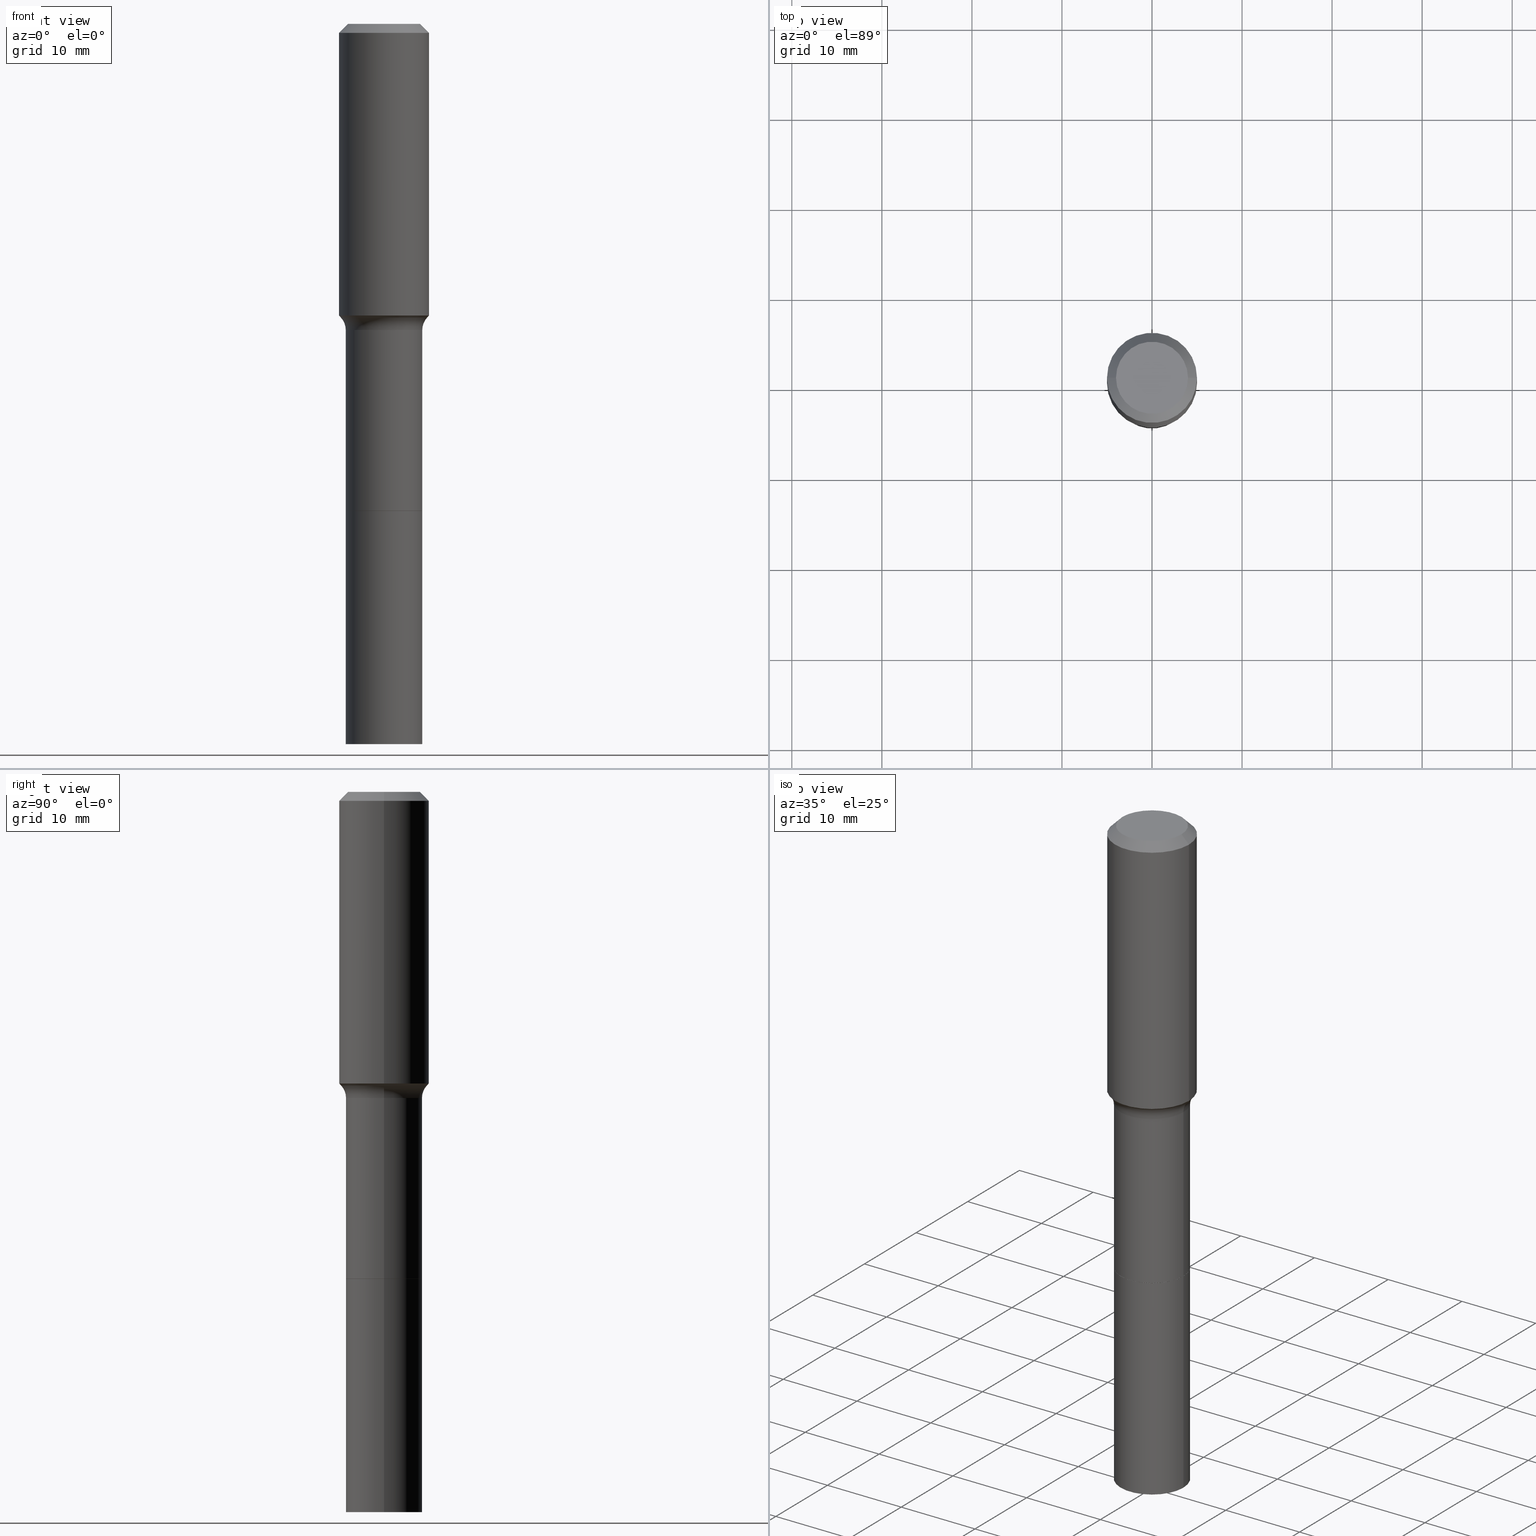
[diagram: canonical four-view strip — front | top / right | iso, engineering-drawing reading convention]
A machine part, canonical four-view strip (front | top / right | iso — engineering-drawing reading convention). The complete STEP part file that produces these views, byte-faithful:
ISO-10303-21;
HEADER;
FILE_DESCRIPTION (( 'STEP AP203' ),
    '1' );
FILE_NAME ('67762.STEP',
    '2025-04-01T15:30:18',
    ( '' ),
    ( '' ),
    'SwSTEP 2.0',
    'SolidWorks 2024',
    '' );
FILE_SCHEMA (( 'CONFIG_CONTROL_DESIGN' ));
ENDSEC;

DATA;
#1 =( CONVERSION_BASED_UNIT ( 'INCH', #131 ) LENGTH_UNIT ( ) NAMED_UNIT ( #398 ) );
#2 = VECTOR ( 'NONE', #107, 39.37007874015748143 ) ;
#3 = DIRECTION ( 'NONE',  ( 1.000000000000000000, -6.982962677686269077E-15, 0.000000000000000000 ) ) ;
#4 = ORIENTED_EDGE ( 'NONE', *, *, #29, .F. ) ;
#5 = DIRECTION ( 'NONE',  ( 1.000000000000000000, -6.982962677686269077E-15, 0.000000000000000000 ) ) ;
#6 = CARTESIAN_POINT ( 'NONE',  ( 5.207870369651868145E-29, -7.435458659200363034E-15, -2.129599999999999937 ) ) ;
#7 = ADVANCED_FACE ( 'NONE', ( #344 ), #459, .T. ) ;
#8 = ORIENTED_EDGE ( 'NONE', *, *, #250, .F. ) ;
#9 = FACE_OUTER_BOUND ( 'NONE', #102, .T. ) ;
#10 = CIRCLE ( 'NONE', #20, 0.1574800000000000089 ) ;
#11 = ORIENTED_EDGE ( 'NONE', *, *, #440, .T. ) ;
#12 = APPROVAL_ROLE ( '' ) ;
#13 = DIRECTION ( 'NONE',  ( 1.000000000000000000, -6.982962677686265922E-15, 4.876223630392693006E-29 ) ) ;
#14 = EDGE_CURVE ( 'NONE', #294, #92, #341, .T. ) ;
#15 = PLANE ( 'NONE',  #309 ) ;
#16 = ORIENTED_EDGE ( 'NONE', *, *, #184, .F. ) ;
#17 = PERSON_AND_ORGANIZATION_ROLE ( 'creator' ) ;
#18 = FACE_OUTER_BOUND ( 'NONE', #417, .T. ) ;
#19 = LOCAL_TIME ( 11, 30, 18.00000000000000000, #203 ) ;
#20 = AXIS2_PLACEMENT_3D ( 'NONE', #49, #352, #88 ) ;
#21 = ORIENTED_EDGE ( 'NONE', *, *, #351, .F. ) ;
#22 = CIRCLE ( 'NONE', #412, 0.1673000000000002263 ) ;
#23 = DIRECTION ( 'NONE',  ( 1.000000000000000000, -6.982962677686271444E-15, 0.000000000000000000 ) ) ;
#24 = VERTEX_POINT ( 'NONE', #268 ) ;
#25 = DIRECTION ( 'NONE',  ( -0.6819983600624909270, 7.399397606724258177E-15, 0.7313537016191775653 ) ) ;
#26 = VERTEX_POINT ( 'NONE', #387 ) ;
#27 = DIRECTION ( 'NONE',  ( -2.445468806185136877E-29, 3.491481338843145188E-15, 1.000000000000000000 ) ) ;
#28 = ORIENTED_EDGE ( 'NONE', *, *, #410, .T. ) ;
#29 = EDGE_CURVE ( 'NONE', #458, #298, #22, .T. ) ;
#30 = CIRCLE ( 'NONE', #234, 0.1673000000000000043 ) ;
#31 = DIRECTION ( 'NONE',  ( 1.000000000000000000, -6.982962677686267499E-15, 0.000000000000000000 ) ) ;
#32 = ORIENTED_EDGE ( 'NONE', *, *, #53, .T. ) ;
#33 = DIRECTION ( 'NONE',  ( 0.7071067811865452413, -7.319954787623248157E-15, -0.7071067811865497932 ) ) ;
#34 = CARTESIAN_POINT ( 'NONE',  ( 0.2472999999999999088, -6.400583590367248387E-15, -1.338600000000000234 ) ) ;
#35 = FACE_OUTER_BOUND ( 'NONE', #214, .T. ) ;
#36 = DIRECTION ( 'NONE',  ( 1.000000000000000000, -6.982962677686268288E-15, 0.000000000000000000 ) ) ;
#37 = APPROVAL_PERSON_ORGANIZATION ( #100, #384, #12 ) ;
#38 = CARTESIAN_POINT ( 'NONE',  ( -0.1672999999999999488, 1.188737996926647247E-15, -8.229378405996454748E-30 ) ) ;
#39 = COORDINATED_UNIVERSAL_TIME_OFFSET ( 5, 0, .BEHIND. ) ;
#40 = DATE_AND_TIME ( #121, #113 ) ;
#41 = APPLICATION_PROTOCOL_DEFINITION ( 'international standard', 'config_control_design', 1994, #191 ) ;
#42 = ORGANIZATION ( 'UNSPECIFIED', 'UNSPECIFIED', '' ) ;
#43 = CARTESIAN_POINT ( 'NONE',  ( 0.1968500000000001915, -5.827626847015647066E-15, -1.275398666569575568 ) ) ;
#44 = AXIS2_PLACEMENT_3D ( 'NONE', #213, #372, #183 ) ;
#45 = ADVANCED_BREP_SHAPE_REPRESENTATION ( '67762', ( #244, #256, #265 ), #512 ) ;
#46 = APPROVAL_STATUS ( 'not_yet_approved' ) ;
#47 = EDGE_CURVE ( 'NONE', #56, #26, #396, .T. ) ;
#48 = DIRECTION ( 'NONE',  ( -2.445468806185136597E-29, 3.491481338843145583E-15, 1.000000000000000000 ) ) ;
#49 = CARTESIAN_POINT ( 'NONE',  ( -9.427742298522567634E-47, 1.346031739168368355E-32, 3.855188123715870730E-18 ) ) ;
#50 = EDGE_LOOP ( 'NONE', ( #110, #129, #349, #95 ) ) ;
#51 = CARTESIAN_POINT ( 'NONE',  ( -0.1673000000000000043, -8.027376145083720030E-15, -2.129599999999999937 ) ) ;
#52 = CONICAL_SURFACE ( 'NONE', #346, 0.1887917038704666206, 0.7504915783575513144 ) ;
#53 = EDGE_CURVE ( 'NONE', #327, #24, #194, .T. ) ;
#54 = ORIENTED_EDGE ( 'NONE', *, *, #125, .F. ) ;
#55 = CARTESIAN_POINT ( 'NONE',  ( -0.1574800000000000089, 1.168406772637159815E-15, 3.855188123707939751E-18 ) ) ;
#56 = VERTEX_POINT ( 'NONE', #43 ) ;
#57 = CC_DESIGN_PERSON_AND_ORGANIZATION_ASSIGNMENT ( #368, #332, ( #360 ) ) ;
#58 = DATE_AND_TIME ( #215, #120 ) ;
#59 = CARTESIAN_POINT ( 'NONE',  ( 5.207870369651867024E-29, -7.435458659200361456E-15, -2.129599999999999937 ) ) ;
#60 = DESIGN_CONTEXT ( 'detailed design', #191, 'design' ) ;
#61 = ORIENTED_EDGE ( 'NONE', *, *, #258, .T. ) ;
#62 = CYLINDRICAL_SURFACE ( 'NONE', #443, 0.1673000000000001153 ) ;
#63 = CC_DESIGN_APPROVAL ( #69, ( #287 ) ) ;
#64 = CIRCLE ( 'NONE', #114, 0.1668000000000000038 ) ;
#65 = EDGE_LOOP ( 'NONE', ( #211, #261, #126, #54 ) ) ;
#66 = AXIS2_PLACEMENT_3D ( 'NONE', #386, #111, #31 ) ;
#67 = EDGE_CURVE ( 'NONE', #56, #154, #83, .T. ) ;
#68 = VERTEX_POINT ( 'NONE', #160 ) ;
#69 = APPROVAL ( #46, 'UNSPECIFIED' ) ;
#70 = ORIENTED_EDGE ( 'NONE', *, *, #152, .T. ) ;
#71 = DIRECTION ( 'NONE',  ( 2.445468806185136597E-29, -3.491481338843145583E-15, -1.000000000000000000 ) ) ;
#72 = ORIENTED_EDGE ( 'NONE', *, *, #47, .F. ) ;
#73 = EDGE_CURVE ( 'NONE', #327, #56, #406, .T. ) ;
#74 = CIRCLE ( 'NONE', #185, 0.1887917038704666206 ) ;
#75 = LINE ( 'NONE', #271, #444 ) ;
#76 = CARTESIAN_POINT ( 'NONE',  ( 0.1968500000000000527, -1.512055823412797583E-15, -0.03937000000000030059 ) ) ;
#77 = DIRECTION ( 'NONE',  ( 1.000000000000000000, -6.982962677686267499E-15, 0.000000000000000000 ) ) ;
#78 = APPROVAL_STATUS ( 'not_yet_approved' ) ;
#79 = AXIS2_PLACEMENT_3D ( 'NONE', #217, #493, #293 ) ;
#80 = EDGE_CURVE ( 'NONE', #195, #135, #150, .T. ) ;
#81 = DIRECTION ( 'NONE',  ( -2.445468806185136597E-29, 3.491481338843145583E-15, 1.000000000000000000 ) ) ;
#82 = DIRECTION ( 'NONE',  ( -2.445468806185136597E-29, 3.491481338843145583E-15, 1.000000000000000000 ) ) ;
#83 = LINE ( 'NONE', #315, #141 ) ;
#84 = EDGE_CURVE ( 'NONE', #174, #294, #10, .T. ) ;
#85 = VECTOR ( 'NONE', #516, 39.37007874015748143 ) ;
#86 = PERSON_AND_ORGANIZATION_ROLE ( 'creator' ) ;
#87 = AXIS2_PLACEMENT_3D ( 'NONE', #226, #495, #340 ) ;
#88 = DIRECTION ( 'NONE',  ( 1.000000000000000000, -6.982962677686265922E-15, 4.876223630392693006E-29 ) ) ;
#89 = VECTOR ( 'NONE', #27, 39.37007874015748143 ) ;
#90 = PRODUCT_DEFINITION ( 'UNKNOWN', '', #287, #60 ) ;
#91 = DIRECTION ( 'NONE',  ( -2.445468806185136597E-29, 3.491481338843145583E-15, 1.000000000000000000 ) ) ;
#92 = VERTEX_POINT ( 'NONE', #283 ) ;
#93 = CARTESIAN_POINT ( 'NONE',  ( -4.713871149261283817E-47, 6.730158695841841775E-33, 1.927594061857935365E-18 ) ) ;
#94 = ADVANCED_FACE ( 'NONE', ( #364 ), #241, .F. ) ;
#95 = ORIENTED_EDGE ( 'NONE', *, *, #363, .F. ) ;
#96 = CYLINDRICAL_SURFACE ( 'NONE', #267, 0.1968500000000001082 ) ;
#97 = ADVANCED_FACE ( 'NONE', ( #163 ), #432, .T. ) ;
#98 = AXIS2_PLACEMENT_3D ( 'NONE', #474, #232, #504 ) ;
#99 = EDGE_LOOP ( 'NONE', ( #365, #11, #429, #491 ) ) ;
#100 = PERSON_AND_ORGANIZATION ( #116, #42 ) ;
#101 = FACE_OUTER_BOUND ( 'NONE', #99, .T. ) ;
#102 = EDGE_LOOP ( 'NONE', ( #427, #382, #463, #367 ) ) ;
#103 = CARTESIAN_POINT ( 'NONE',  ( 7.702248551960706711E-29, -1.099676962482037231E-14, -3.149600000000000399 ) ) ;
#104 = ORIENTED_EDGE ( 'NONE', *, *, #184, .T. ) ;
#105 = CARTESIAN_POINT ( 'NONE',  ( 5.207870369651867024E-29, -7.435458659200361456E-15, -2.129599999999999937 ) ) ;
#106 = AXIS2_PLACEMENT_3D ( 'NONE', #186, #503, #233 ) ;
#107 = DIRECTION ( 'NONE',  ( -0.7071067811865452413, 2.468850131082233000E-15, -0.7071067811865497932 ) ) ;
#108 = ORIENTED_EDGE ( 'NONE', *, *, #437, .T. ) ;
#109 = DIRECTION ( 'NONE',  ( -2.445468806185136597E-29, 3.491481338843145583E-15, 1.000000000000000000 ) ) ;
#110 = ORIENTED_EDGE ( 'NONE', *, *, #496, .T. ) ;
#111 = DIRECTION ( 'NONE',  ( -2.445468806185136597E-29, 3.491481338843145583E-15, 1.000000000000000000 ) ) ;
#112 = DIRECTION ( 'NONE',  ( -2.445468806185136597E-29, 3.491481338843145583E-15, 1.000000000000000000 ) ) ;
#113 = LOCAL_TIME ( 11, 30, 18.00000000000000000, #39 ) ;
#114 = AXIS2_PLACEMENT_3D ( 'NONE', #291, #91, #251 ) ;
#115 = FACE_OUTER_BOUND ( 'NONE', #411, .T. ) ;
#116 = PERSON ( 'UNSPECIFIED', 'UNSPECIFIED', 'UNSPECIFIED', ('UNSPECIFIED'), ('UNSPECIFIED'), ('UNSPECIFIED') ) ;
#117 = DIRECTION ( 'NONE',  ( -2.445468806185136597E-29, 3.491481338843145583E-15, 1.000000000000000000 ) ) ;
#118 = LINE ( 'NONE', #507, #289 ) ;
#119 =( LENGTH_UNIT ( ) NAMED_UNIT ( * ) SI_UNIT ( $, .METRE. ) );
#120 = LOCAL_TIME ( 11, 30, 18.00000000000000000, #413 ) ;
#121 = CALENDAR_DATE ( 2025, 1, 4 ) ;
#122 = AXIS2_PLACEMENT_3D ( 'NONE', #93, #144, #460 ) ;
#123 =( NAMED_UNIT ( * ) PLANE_ANGLE_UNIT ( ) SI_UNIT ( $, .RADIAN. ) );
#124 = CARTESIAN_POINT ( 'NONE',  ( 5.207870369651868145E-29, -7.435458659200363034E-15, -2.129599999999999937 ) ) ;
#125 = EDGE_CURVE ( 'NONE', #92, #154, #422, .T. ) ;
#126 = ORIENTED_EDGE ( 'NONE', *, *, #67, .T. ) ;
#127 = CALENDAR_DATE ( 2025, 1, 4 ) ;
#128 = CARTESIAN_POINT ( 'NONE',  ( 3.273504543959424474E-29, -4.673696920175435525E-15, -1.338600000000000234 ) ) ;
#129 = ORIENTED_EDGE ( 'NONE', *, *, #478, .T. ) ;
#130 = CC_DESIGN_APPROVAL ( #384, ( #360 ) ) ;
#131 = LENGTH_MEASURE_WITH_UNIT ( LENGTH_MEASURE( 0.02539999999999999897 ), #119 );
#132 = CIRCLE ( 'NONE', #79, 0.1668000000000000038 ) ;
#133 = CYLINDRICAL_SURFACE ( 'NONE', #513, 0.1673000000000001153 ) ;
#134 = CONICAL_SURFACE ( 'NONE', #442, 0.1968500000000000527, 0.7853981633974450594 ) ;
#135 = VERTEX_POINT ( 'NONE', #319 ) ;
#136 = DIRECTION ( 'NONE',  ( 1.000000000000000000, -6.982962677686269866E-15, 0.000000000000000000 ) ) ;
#137 = ORIENTED_EDGE ( 'NONE', *, *, #125, .T. ) ;
#138 = ADVANCED_FACE ( 'NONE', ( #246 ), #431, .T. ) ;
#139 = DIRECTION ( 'NONE',  ( -2.445468806185136877E-29, 3.491481338843145188E-15, 1.000000000000000000 ) ) ;
#140 = FACE_OUTER_BOUND ( 'NONE', #337, .T. ) ;
#141 = VECTOR ( 'NONE', #171, 39.37007874015748143 ) ;
#142 = ORIENTED_EDGE ( 'NONE', *, *, #84, .F. ) ;
#143 = APPROVAL_DATE_TIME ( #446, #384 ) ;
#144 = DIRECTION ( 'NONE',  ( 2.438088387897960049E-29, -3.491481338843145188E-15, -1.000000000000000000 ) ) ;
#145 = EDGE_CURVE ( 'NONE', #327, #195, #430, .T. ) ;
#146 = ORIENTED_EDGE ( 'NONE', *, *, #168, .F. ) ;
#147 = DIRECTION ( 'NONE',  ( -2.445468806185136597E-29, 3.491481338843145583E-15, 1.000000000000000000 ) ) ;
#148 = CARTESIAN_POINT ( 'NONE',  ( -0.1968500000000000527, 1.237136582792286422E-15, -0.03937000000000030059 ) ) ;
#149 = LINE ( 'NONE', #158, #318 ) ;
#150 = CIRCLE ( 'NONE', #175, 0.1672999999999999210 ) ;
#151 = EDGE_LOOP ( 'NONE', ( #494, #4 ) ) ;
#152 = EDGE_CURVE ( 'NONE', #24, #327, #74, .T. ) ;
#153 = LINE ( 'NONE', #276, #89 ) ;
#154 = VERTEX_POINT ( 'NONE', #76 ) ;
#155 = CARTESIAN_POINT ( 'NONE',  ( 5.207870369651868145E-29, -7.435458659200363034E-15, -2.129599999999999937 ) ) ;
#156 = APPROVAL ( #78, 'UNSPECIFIED' ) ;
#157 = DIRECTION ( 'NONE',  ( 1.000000000000000000, -6.982962677686271444E-15, 0.000000000000000000 ) ) ;
#158 = CARTESIAN_POINT ( 'NONE',  ( -0.1887917038704666206, -3.141756418823728173E-15, -1.284040131195000489 ) ) ;
#159 = APPROVAL_PERSON_ORGANIZATION ( #321, #156, #242 ) ;
#160 = CARTESIAN_POINT ( 'NONE',  ( 0.1673000000000000043, -8.603708315177275821E-15, -2.129599999999999937 ) ) ;
#161 = CIRCLE ( 'NONE', #201, 0.07999999999999990452 ) ;
#162 = CIRCLE ( 'NONE', #355, 0.1673000000000000043 ) ;
#163 = FACE_OUTER_BOUND ( 'NONE', #50, .T. ) ;
#164 = EDGE_CURVE ( 'NONE', #26, #56, #255, .T. ) ;
#165 = DIRECTION ( 'NONE',  ( -2.445468806185136597E-29, 3.491481338843145583E-15, 1.000000000000000000 ) ) ;
#166 = CARTESIAN_POINT ( 'NONE',  ( 5.206647635248775343E-29, -7.433712918530942319E-15, -2.129100000000000215 ) ) ;
#167 = AXIS2_PLACEMENT_3D ( 'NONE', #402, #207, #509 ) ;
#168 = EDGE_CURVE ( 'NONE', #68, #288, #30, .T. ) ;
#169 = DIRECTION ( 'NONE',  ( 1.000000000000000000, 0.000000000000000000, 0.000000000000000000 ) ) ;
#170 = CC_DESIGN_PERSON_AND_ORGANIZATION_ASSIGNMENT ( #371, #375, ( #287 ) ) ;
#171 = DIRECTION ( 'NONE',  ( -2.445468806185136877E-29, 3.491481338843145188E-15, 1.000000000000000000 ) ) ;
#172 = DIRECTION ( 'NONE',  ( 2.438088387897960049E-29, -3.491481338843145188E-15, -1.000000000000000000 ) ) ;
#173 = DIRECTION ( 'NONE',  ( -2.445468806185136597E-29, 3.491481338843145583E-15, 1.000000000000000000 ) ) ;
#174 = VERTEX_POINT ( 'NONE', #441 ) ;
#175 = AXIS2_PLACEMENT_3D ( 'NONE', #128, #48, #77 ) ;
#176 = DIRECTION ( 'NONE',  ( 7.105427357601001859E-15, 1.000000000000000000, -3.491481338843145583E-15 ) ) ;
#177 = PRODUCT_DEFINITION_SHAPE ( 'NONE', 'NONE',  #90 ) ;
#178 = ORIENTED_EDGE ( 'NONE', *, *, #80, .T. ) ;
#179 = ADVANCED_FACE ( 'NONE', ( #366 ), #133, .T. ) ;
#180 = PLANE ( 'NONE',  #122 ) ;
#181 = DIRECTION ( 'NONE',  ( 1.000000000000000000, -6.982962677686266711E-15, 4.876176775795935793E-29 ) ) ;
#182 = ORIENTED_EDGE ( 'NONE', *, *, #243, .F. ) ;
#183 = DIRECTION ( 'NONE',  ( 1.000000000000000000, -6.982962677686267499E-15, 4.876176775795936353E-29 ) ) ;
#184 = EDGE_CURVE ( 'NONE', #208, #220, #64, .T. ) ;
#185 = AXIS2_PLACEMENT_3D ( 'NONE', #469, #112, #274 ) ;
#186 = CARTESIAN_POINT ( 'NONE',  ( 9.627810689950955906E-31, -1.374596203102556794E-16, -0.03937000000000030059 ) ) ;
#187 = FACE_OUTER_BOUND ( 'NONE', #334, .T. ) ;
#188 = ORIENTED_EDGE ( 'NONE', *, *, #73, .T. ) ;
#189 = ORIENTED_EDGE ( 'NONE', *, *, #388, .T. ) ;
#190 = ADVANCED_FACE ( 'NONE', ( #140 ), #180, .F. ) ;
#191 = APPLICATION_CONTEXT ( 'configuration controlled 3d designs of mechanical parts and assemblies' ) ;
#192 = DIRECTION ( 'NONE',  ( 0.7071067811868130271, -2.468850131085038979E-15, 0.7071067811862817853 ) ) ;
#193 = LOCAL_TIME ( 11, 30, 18.00000000000000000, #450 ) ;
#194 = CIRCLE ( 'NONE', #453, 0.1887917038704666206 ) ;
#195 = VERTEX_POINT ( 'NONE', #333 ) ;
#196 = CC_DESIGN_PERSON_AND_ORGANIZATION_ASSIGNMENT ( #202, #279, ( #515 ) ) ;
#197 = ORIENTED_EDGE ( 'NONE', *, *, #67, .F. ) ;
#198 = CARTESIAN_POINT ( 'NONE',  ( 0.1887917038704666206, -5.801527578377315353E-15, -1.284040131195000489 ) ) ;
#199 = DIRECTION ( 'NONE',  ( -0.7071067811868130271, 7.493145998871311837E-15, 0.7071067811862817853 ) ) ;
#200 = DIRECTION ( 'NONE',  ( -2.445468806185136597E-29, 3.491481338843145583E-15, 1.000000000000000000 ) ) ;
#201 = AXIS2_PLACEMENT_3D ( 'NONE', #306, #176, #304 ) ;
#202 = PERSON_AND_ORGANIZATION ( #116, #42 ) ;
#203 = COORDINATED_UNIVERSAL_TIME_OFFSET ( 5, 0, .BEHIND. ) ;
#204 = ADVANCED_FACE ( 'NONE', ( #373 ), #15, .F. ) ;
#205 = DATE_TIME_ROLE ( 'creation_date' ) ;
#206 = CIRCLE ( 'NONE', #379, 0.1673000000000002263 ) ;
#207 = DIRECTION ( 'NONE',  ( -2.445468806185136597E-29, 3.491481338843145583E-15, 1.000000000000000000 ) ) ;
#208 = VERTEX_POINT ( 'NONE', #260 ) ;
#209 = LINE ( 'NONE', #38, #85 ) ;
#210 = DIRECTION ( 'NONE',  ( 1.000000000000000000, -6.982962677686267499E-15, 4.876176775795936353E-29 ) ) ;
#211 = ORIENTED_EDGE ( 'NONE', *, *, #388, .F. ) ;
#212 = SHAPE_DEFINITION_REPRESENTATION ( #177, #45 ) ;
#213 = CARTESIAN_POINT ( 'NONE',  ( 0.000000000000000000, 0.000000000000000000, 0.000000000000000000 ) ) ;
#214 = EDGE_LOOP ( 'NONE', ( #270, #483, #218, #415 ) ) ;
#215 = CALENDAR_DATE ( 2025, 1, 4 ) ;
#216 = AXIS2_PLACEMENT_3D ( 'NONE', #34, #473, #36 ) ;
#217 = CARTESIAN_POINT ( 'NONE',  ( 5.207870369651867024E-29, -7.435458659200361456E-15, -2.129599999999999937 ) ) ;
#218 = ORIENTED_EDGE ( 'NONE', *, *, #358, .T. ) ;
#219 = LINE ( 'NONE', #416, #472 ) ;
#220 = VERTEX_POINT ( 'NONE', #369 ) ;
#221 = EDGE_CURVE ( 'NONE', #24, #135, #161, .T. ) ;
#222 = CARTESIAN_POINT ( 'NONE',  ( 0.1673000000000000043, -8.601962574507855106E-15, -2.129100000000000215 ) ) ;
#223 = EDGE_LOOP ( 'NONE', ( #377, #189, #505, #197 ) ) ;
#224 = EDGE_CURVE ( 'NONE', #294, #174, #361, .T. ) ;
#225 = APPROVAL_PERSON_ORGANIZATION ( #405, #69, #418 ) ;
#226 = CARTESIAN_POINT ( 'NONE',  ( 7.643427062710621878E-29, -3.947602851462104750E-15, -2.129599999999999937 ) ) ;
#227 = AXIS2_PLACEMENT_3D ( 'NONE', #59, #147, #301 ) ;
#228 = AXIS2_PLACEMENT_3D ( 'NONE', #313, #428, #316 ) ;
#229 = VERTEX_POINT ( 'NONE', #222 ) ;
#230 = LINE ( 'NONE', #347, #290 ) ;
#231 = EDGE_LOOP ( 'NONE', ( #142, #312, #390, #445 ) ) ;
#232 = DIRECTION ( 'NONE',  ( -2.445468806185136597E-29, 3.491481338843145583E-15, 1.000000000000000000 ) ) ;
#233 = DIRECTION ( 'NONE',  ( -1.000000000000000000, 6.982962677686266711E-15, 0.000000000000000000 ) ) ;
#234 = AXIS2_PLACEMENT_3D ( 'NONE', #124, #117, #439 ) ;
#235 = ORIENTED_EDGE ( 'NONE', *, *, #258, .F. ) ;
#236 = DIRECTION ( 'NONE',  ( -2.445468806185136877E-29, 3.491481338843145188E-15, 1.000000000000000000 ) ) ;
#237 = CARTESIAN_POINT ( 'NONE',  ( 3.118947654546014768E-29, -4.453030643913104669E-15, -1.275398666569575568 ) ) ;
#238 = DIRECTION ( 'NONE',  ( -2.445468806185136597E-29, 3.491481338843145583E-15, 1.000000000000000000 ) ) ;
#239 = CARTESIAN_POINT ( 'NONE',  ( -0.1673000000000002263, -8.027376145083716875E-15, -3.149600000000000399 ) ) ;
#240 = CC_DESIGN_PERSON_AND_ORGANIZATION_ASSIGNMENT ( #397, #86, ( #90 ) ) ;
#241 = TOROIDAL_SURFACE ( 'NONE', #300, 0.2472999999999999088, 0.07999999999999993228 ) ;
#242 = APPROVAL_ROLE ( '' ) ;
#243 = EDGE_CURVE ( 'NONE', #220, #208, #132, .T. ) ;
#244 = MANIFOLD_SOLID_BREP ( 'Body-Move/Copy2[1]', #487 ) ;
#245 = CC_DESIGN_DATE_AND_TIME_ASSIGNMENT ( #40, #205, ( #90 ) ) ;
#246 = FACE_OUTER_BOUND ( 'NONE', #65, .T. ) ;
#247 = FACE_OUTER_BOUND ( 'NONE', #272, .T. ) ;
#248 = AXIS2_PLACEMENT_3D ( 'NONE', #447, #322, #210 ) ;
#249 = CARTESIAN_POINT ( 'NONE',  ( 9.627810689950955906E-31, -1.374596203102556794E-16, -0.03937000000000030059 ) ) ;
#250 = EDGE_CURVE ( 'NONE', #298, #68, #219, .T. ) ;
#251 = DIRECTION ( 'NONE',  ( 1.000000000000000000, -6.982962677686265922E-15, 0.000000000000000000 ) ) ;
#252 = DATE_AND_TIME ( #295, #477 ) ;
#253 = FACE_OUTER_BOUND ( 'NONE', #467, .T. ) ;
#254 = EDGE_LOOP ( 'NONE', ( #345, #404, #310, #178 ) ) ;
#255 = CIRCLE ( 'NONE', #498, 0.1968500000000001915 ) ;
#256 = MANIFOLD_SOLID_BREP ( 'Body-Move/Copy2[2]', #285 ) ;
#257 = DIRECTION ( 'NONE',  ( -2.445468806185136597E-29, 3.491481338843145583E-15, 1.000000000000000000 ) ) ;
#258 = EDGE_CURVE ( 'NONE', #488, #229, #370, .T. ) ;
#259 = APPROVAL_DATE_TIME ( #58, #69 ) ;
#260 = CARTESIAN_POINT ( 'NONE',  ( -0.1668000000000000038, -6.247624148778405090E-15, -2.129599999999999937 ) ) ;
#261 = ORIENTED_EDGE ( 'NONE', *, *, #164, .T. ) ;
#262 = COORDINATED_UNIVERSAL_TIME_OFFSET ( 5, 0, .BEHIND. ) ;
#263 = DIRECTION ( 'NONE',  ( 2.438088387897960049E-29, -3.491481338843145188E-15, -1.000000000000000000 ) ) ;
#264 = ORIENTED_EDGE ( 'NONE', *, *, #168, .T. ) ;
#265 = AXIS2_PLACEMENT_3D ( 'NONE', #357, #476, #169 ) ;
#266 = DIRECTION ( 'NONE',  ( -2.445468806185136597E-29, 3.491481338843145583E-15, 1.000000000000000000 ) ) ;
#267 = AXIS2_PLACEMENT_3D ( 'NONE', #449, #266, #181 ) ;
#268 = CARTESIAN_POINT ( 'NONE',  ( -0.1887917038704664818, -3.141756418823729356E-15, -1.284040131195000489 ) ) ;
#269 = ADVANCED_FACE ( 'NONE', ( #9 ), #62, .T. ) ;
#270 = ORIENTED_EDGE ( 'NONE', *, *, #152, .F. ) ;
#271 = CARTESIAN_POINT ( 'NONE',  ( 0.1668000000000000038, -8.600216833838431236E-15, -2.129599999999999937 ) ) ;
#272 = EDGE_LOOP ( 'NONE', ( #307, #70, #188, #461 ) ) ;
#273 = LINE ( 'NONE', #471, #317 ) ;
#274 = DIRECTION ( 'NONE',  ( 1.000000000000000000, -6.982962677686269077E-15, 0.000000000000000000 ) ) ;
#275 = ADVANCED_FACE ( 'NONE', ( #424 ), #96, .T. ) ;
#276 = CARTESIAN_POINT ( 'NONE',  ( 0.1672999999999999488, -1.168249655976912195E-15, 8.157843745906598810E-30 ) ) ;
#277 = CARTESIAN_POINT ( 'NONE',  ( 3.140080086727243582E-29, -4.483202156393049043E-15, -1.284040131195000489 ) ) ;
#278 = LINE ( 'NONE', #466, #380 ) ;
#279 = PERSON_AND_ORGANIZATION_ROLE ( 'design_owner' ) ;
#280 = CONICAL_SURFACE ( 'NONE', #353, 0.1887917038704666206, 0.7504915783575513144 ) ;
#281 = CC_DESIGN_PERSON_AND_ORGANIZATION_ASSIGNMENT ( #499, #17, ( #287 ) ) ;
#282 = CARTESIAN_POINT ( 'NONE',  ( 7.702248551960706711E-29, -1.099676962482037231E-14, -3.149600000000000399 ) ) ;
#283 = CARTESIAN_POINT ( 'NONE',  ( -0.1968500000000000527, -8.965417567679217455E-16, -0.03937000000000030059 ) ) ;
#284 = APPROVAL_DATE_TIME ( #436, #156 ) ;
#285 = CLOSED_SHELL ( 'NONE', ( #331, #7, #275, #457, #426, #97, #335, #94, #510, #138, #433, #190, #297, #323 ) ) ;
#286 = DIRECTION ( 'NONE',  ( 1.000000000000000000, -6.982962677686266711E-15, 4.876176775795935793E-29 ) ) ;
#287 = PRODUCT_DEFINITION_FORMATION_WITH_SPECIFIED_SOURCE ( 'ANY', '', #515, .NOT_KNOWN. ) ;
#288 = VERTEX_POINT ( 'NONE', #51 ) ;
#289 = VECTOR ( 'NONE', #33, 39.37007874015748143 ) ;
#290 = VECTOR ( 'NONE', #236, 39.37007874015748143 ) ;
#291 = CARTESIAN_POINT ( 'NONE',  ( 5.207870369651867024E-29, -7.435458659200361456E-15, -2.129599999999999937 ) ) ;
#292 = ORIENTED_EDGE ( 'NONE', *, *, #358, .F. ) ;
#293 = DIRECTION ( 'NONE',  ( 1.000000000000000000, -6.982962677686265922E-15, 0.000000000000000000 ) ) ;
#294 = VERTEX_POINT ( 'NONE', #55 ) ;
#295 = CALENDAR_DATE ( 2025, 1, 4 ) ;
#296 = DIRECTION ( 'NONE',  ( -2.445468806185136597E-29, 3.491481338843145583E-15, 1.000000000000000000 ) ) ;
#297 = ADVANCED_FACE ( 'NONE', ( #187 ), #502, .F. ) ;
#298 = VERTEX_POINT ( 'NONE', #329 ) ;
#299 = SECURITY_CLASSIFICATION_LEVEL ( 'unclassified' ) ;
#300 = AXIS2_PLACEMENT_3D ( 'NONE', #391, #200, #350 ) ;
#301 = DIRECTION ( 'NONE',  ( 1.000000000000000000, -6.982962677686265922E-15, 0.000000000000000000 ) ) ;
#302 = ORIENTED_EDGE ( 'NONE', *, *, #395, .T. ) ;
#303 = DATE_TIME_ROLE ( 'classification_date' ) ;
#304 = DIRECTION ( 'NONE',  ( -1.000000000000000000, 7.105427357601001859E-15, 0.000000000000000000 ) ) ;
#305 = ORIENTED_EDGE ( 'NONE', *, *, #84, .T. ) ;
#306 = CARTESIAN_POINT ( 'NONE',  ( -0.2472999999999999088, -2.916524734640708414E-15, -1.338600000000000234 ) ) ;
#307 = ORIENTED_EDGE ( 'NONE', *, *, #395, .F. ) ;
#308 = DIRECTION ( 'NONE',  ( -1.000000000000000000, 6.982962677686266711E-15, 0.000000000000000000 ) ) ;
#309 = AXIS2_PLACEMENT_3D ( 'NONE', #500, #263, #451 ) ;
#310 = ORIENTED_EDGE ( 'NONE', *, *, #145, .T. ) ;
#311 = DIRECTION ( 'NONE',  ( -2.445468806185136877E-29, 3.491481338843145188E-15, 1.000000000000000000 ) ) ;
#312 = ORIENTED_EDGE ( 'NONE', *, *, #351, .T. ) ;
#313 = CARTESIAN_POINT ( 'NONE',  ( 3.273504543959424474E-29, -4.673696920175435525E-15, -1.338600000000000234 ) ) ;
#314 = EDGE_CURVE ( 'NONE', #298, #458, #206, .T. ) ;
#315 = CARTESIAN_POINT ( 'NONE',  ( 0.1968500000000001082, -1.374596203102542397E-15, 9.598753983154305062E-30 ) ) ;
#316 = DIRECTION ( 'NONE',  ( 1.000000000000000000, -6.982962677686265922E-15, 4.883557194083112340E-29 ) ) ;
#317 = VECTOR ( 'NONE', #199, 39.37007874015748854 ) ;
#318 = VECTOR ( 'NONE', #25, 39.37007874015748143 ) ;
#319 = CARTESIAN_POINT ( 'NONE',  ( -0.1672999999999999210, -4.864966922426541281E-15, -1.338600000000000234 ) ) ;
#320 = DIRECTION ( 'NONE',  ( -1.000000000000000000, 6.982962677686265922E-15, -4.876176775795935793E-29 ) ) ;
#321 = PERSON_AND_ORGANIZATION ( #116, #42 ) ;
#322 = DIRECTION ( 'NONE',  ( -2.445468806185136597E-29, 3.491481338843145583E-15, 1.000000000000000000 ) ) ;
#323 = ADVANCED_FACE ( 'NONE', ( #253 ), #435, .T. ) ;
#324 = EDGE_LOOP ( 'NONE', ( #32, #302, #72, #408 ) ) ;
#325 = PLANE ( 'NONE',  #485 ) ;
#326 = DIRECTION ( 'NONE',  ( 0.6819983600624909270, -2.208861293262397311E-15, 0.7313537016191775653 ) ) ;
#327 = VERTEX_POINT ( 'NONE', #462 ) ;
#328 = AXIS2_PLACEMENT_3D ( 'NONE', #105, #456, #376 ) ;
#329 = CARTESIAN_POINT ( 'NONE',  ( 0.1673000000000002263, -1.216501928079728667E-14, -3.149600000000000399 ) ) ;
#330 = EDGE_LOOP ( 'NONE', ( #264, #497 ) ) ;
#331 = ADVANCED_FACE ( 'NONE', ( #101 ), #348, .T. ) ;
#332 = PERSON_AND_ORGANIZATION_ROLE ( 'classification_officer' ) ;
#333 = CARTESIAN_POINT ( 'NONE',  ( 0.1672999999999999210, -5.841946576152347523E-15, -1.338600000000000234 ) ) ;
#334 = EDGE_LOOP ( 'NONE', ( #182, #16 ) ) ;
#335 = ADVANCED_FACE ( 'NONE', ( #18 ), #409, .T. ) ;
#336 = DIRECTION ( 'NONE',  ( -2.445468806185136597E-29, 3.491481338843145583E-15, 1.000000000000000000 ) ) ;
#337 = EDGE_LOOP ( 'NONE', ( #501, #305 ) ) ;
#338 = CC_DESIGN_APPROVAL ( #156, ( #90 ) ) ;
#339 = CIRCLE ( 'NONE', #98, 0.1968500000000000527 ) ;
#340 = DIRECTION ( 'NONE',  ( 1.000000000000000000, -6.982962677686265922E-15, 4.876176775795935793E-29 ) ) ;
#341 = LINE ( 'NONE', #148, #2 ) ;
#342 = CARTESIAN_POINT ( 'NONE',  ( 5.206647635248775343E-29, -7.433712918530942319E-15, -2.129100000000000215 ) ) ;
#343 = EDGE_CURVE ( 'NONE', #154, #92, #339, .T. ) ;
#344 = FACE_OUTER_BOUND ( 'NONE', #231, .T. ) ;
#345 = ORIENTED_EDGE ( 'NONE', *, *, #221, .F. ) ;
#346 = AXIS2_PLACEMENT_3D ( 'NONE', #362, #165, #480 ) ;
#347 = CARTESIAN_POINT ( 'NONE',  ( -0.1673000000000001153, -6.246720662273714604E-15, -2.129599999999999937 ) ) ;
#348 = CONICAL_SURFACE ( 'NONE', #328, 0.1668000000000000038, 0.7853981633978239785 ) ;
#349 = ORIENTED_EDGE ( 'NONE', *, *, #80, .F. ) ;
#350 = DIRECTION ( 'NONE',  ( 1.000000000000000000, -6.982962677686265922E-15, 4.883557194083112340E-29 ) ) ;
#351 = EDGE_CURVE ( 'NONE', #174, #154, #118, .T. ) ;
#352 = DIRECTION ( 'NONE',  ( -2.445468806185136597E-29, 3.491481338843145583E-15, 1.000000000000000000 ) ) ;
#353 = AXIS2_PLACEMENT_3D ( 'NONE', #464, #81, #5 ) ;
#354 = AXIS2_PLACEMENT_3D ( 'NONE', #342, #336, #136 ) ;
#355 = AXIS2_PLACEMENT_3D ( 'NONE', #155, #109, #392 ) ;
#356 = DIRECTION ( 'NONE',  ( 1.000000000000000000, -6.982962677686266711E-15, 0.000000000000000000 ) ) ;
#357 = CARTESIAN_POINT ( 'NONE',  ( 0.000000000000000000, 0.000000000000000000, 0.000000000000000000 ) ) ;
#358 = EDGE_CURVE ( 'NONE', #135, #195, #389, .T. ) ;
#359 = CARTESIAN_POINT ( 'NONE',  ( -0.1673000000000000043, -4.864966922426540492E-15, -2.129100000000000215 ) ) ;
#360 = SECURITY_CLASSIFICATION ( '', '', #299 ) ;
#361 = CIRCLE ( 'NONE', #486, 0.1574800000000000089 ) ;
#362 = CARTESIAN_POINT ( 'NONE',  ( 3.140080086727243582E-29, -4.483202156393049043E-15, -1.284040131195000489 ) ) ;
#363 = EDGE_CURVE ( 'NONE', #229, #195, #153, .T. ) ;
#364 = FACE_OUTER_BOUND ( 'NONE', #254, .T. ) ;
#365 = ORIENTED_EDGE ( 'NONE', *, *, #243, .T. ) ;
#366 = FACE_OUTER_BOUND ( 'NONE', #420, .T. ) ;
#367 = ORIENTED_EDGE ( 'NONE', *, *, #400, .F. ) ;
#368 = PERSON_AND_ORGANIZATION ( #116, #42 ) ;
#369 = CARTESIAN_POINT ( 'NONE',  ( 0.1668000000000000038, -8.600216833838431236E-15, -2.129599999999999937 ) ) ;
#370 = CIRCLE ( 'NONE', #354, 0.1673000000000000043 ) ;
#371 = PERSON_AND_ORGANIZATION ( #116, #42 ) ;
#372 = DIRECTION ( 'NONE',  ( -2.445468806185136597E-29, 3.491481338843145583E-15, 1.000000000000000000 ) ) ;
#373 = FACE_OUTER_BOUND ( 'NONE', #330, .T. ) ;
#374 = ORIENTED_EDGE ( 'NONE', *, *, #478, .F. ) ;
#375 = PERSON_AND_ORGANIZATION_ROLE ( 'design_supplier' ) ;
#376 = DIRECTION ( 'NONE',  ( 1.000000000000000000, -6.982962677686265922E-15, 0.000000000000000000 ) ) ;
#377 = ORIENTED_EDGE ( 'NONE', *, *, #47, .T. ) ;
#378 = AXIS2_PLACEMENT_3D ( 'NONE', #166, #82, #438 ) ;
#379 = AXIS2_PLACEMENT_3D ( 'NONE', #103, #381, #23 ) ;
#380 = VECTOR ( 'NONE', #311, 39.37007874015748143 ) ;
#381 = DIRECTION ( 'NONE',  ( -2.445468806185136597E-29, 3.491481338843145583E-15, 1.000000000000000000 ) ) ;
#382 = ORIENTED_EDGE ( 'NONE', *, *, #29, .T. ) ;
#383 = FACE_OUTER_BOUND ( 'NONE', #324, .T. ) ;
#384 = APPROVAL ( #489, 'UNSPECIFIED' ) ;
#385 = ORIENTED_EDGE ( 'NONE', *, *, #363, .T. ) ;
#386 = CARTESIAN_POINT ( 'NONE',  ( 3.273504543959424474E-29, -4.673696920175435525E-15, -1.338600000000000234 ) ) ;
#387 = CARTESIAN_POINT ( 'NONE',  ( -0.1968500000000001915, -3.054327268569345698E-15, -1.275398666569575568 ) ) ;
#388 = EDGE_CURVE ( 'NONE', #26, #92, #278, .T. ) ;
#389 = CIRCLE ( 'NONE', #66, 0.1672999999999999210 ) ;
#390 = ORIENTED_EDGE ( 'NONE', *, *, #343, .T. ) ;
#391 = CARTESIAN_POINT ( 'NONE',  ( 3.273504543959424474E-29, -4.673696920175435525E-15, -1.338600000000000234 ) ) ;
#392 = DIRECTION ( 'NONE',  ( 1.000000000000000000, -6.982962677686264344E-15, 0.000000000000000000 ) ) ;
#393 = DIRECTION ( 'NONE',  ( 1.000000000000000000, -6.982962677686266711E-15, 0.000000000000000000 ) ) ;
#394 = APPLICATION_PROTOCOL_DEFINITION ( 'international standard', 'config_control_design', 1994, #517 ) ;
#395 = EDGE_CURVE ( 'NONE', #24, #26, #149, .T. ) ;
#396 = CIRCLE ( 'NONE', #167, 0.1968500000000001915 ) ;
#397 = PERSON_AND_ORGANIZATION ( #116, #42 ) ;
#398 = DIMENSIONAL_EXPONENTS ( 1.000000000000000000, 0.000000000000000000, 0.000000000000000000, 0.000000000000000000, 0.000000000000000000, 0.000000000000000000, 0.000000000000000000 ) ;
#399 =( NAMED_UNIT ( * ) SI_UNIT ( $, .STERADIAN. ) SOLID_ANGLE_UNIT ( ) );
#400 = EDGE_CURVE ( 'NONE', #288, #68, #162, .T. ) ;
#401 = MECHANICAL_CONTEXT ( 'NONE', #517, 'mechanical' ) ;
#402 = CARTESIAN_POINT ( 'NONE',  ( 3.118947654546014768E-29, -4.453030643913104669E-15, -1.275398666569575568 ) ) ;
#403 = AXIS2_PLACEMENT_3D ( 'NONE', #249, #238, #393 ) ;
#404 = ORIENTED_EDGE ( 'NONE', *, *, #53, .F. ) ;
#405 = PERSON_AND_ORGANIZATION ( #116, #42 ) ;
#406 = LINE ( 'NONE', #198, #479 ) ;
#407 = CARTESIAN_POINT ( 'NONE',  ( 0.000000000000000000, 0.000000000000000000, 0.000000000000000000 ) ) ;
#408 = ORIENTED_EDGE ( 'NONE', *, *, #73, .F. ) ;
#409 = CYLINDRICAL_SURFACE ( 'NONE', #44, 0.1672999999999999488 ) ;
#410 = EDGE_CURVE ( 'NONE', #220, #229, #75, .T. ) ;
#411 = EDGE_LOOP ( 'NONE', ( #21, #508, #448, #137 ) ) ;
#412 = AXIS2_PLACEMENT_3D ( 'NONE', #425, #482, #157 ) ;
#413 = COORDINATED_UNIVERSAL_TIME_OFFSET ( 5, 0, .BEHIND. ) ;
#414 = CARTESIAN_POINT ( 'NONE',  ( 5.207870369651868145E-29, -7.435458659200363034E-15, -2.129599999999999937 ) ) ;
#415 = ORIENTED_EDGE ( 'NONE', *, *, #145, .F. ) ;
#416 = CARTESIAN_POINT ( 'NONE',  ( 0.1673000000000001153, -8.603708315177275821E-15, -2.129599999999999937 ) ) ;
#417 = EDGE_LOOP ( 'NONE', ( #374, #61, #385, #292 ) ) ;
#418 = APPROVAL_ROLE ( '' ) ;
#419 = CARTESIAN_POINT ( 'NONE',  ( -9.427742298522567634E-47, 1.346031739168368355E-32, 3.855188123715870730E-18 ) ) ;
#420 = EDGE_LOOP ( 'NONE', ( #452, #108, #146, #8 ) ) ;
#421 = CC_DESIGN_SECURITY_CLASSIFICATION ( #360, ( #287 ) ) ;
#422 = CIRCLE ( 'NONE', #403, 0.1968500000000000527 ) ;
#423 = TOROIDAL_SURFACE ( 'NONE', #228, 0.2472999999999999088, 0.07999999999999993228 ) ;
#424 = FACE_OUTER_BOUND ( 'NONE', #223, .T. ) ;
#425 = CARTESIAN_POINT ( 'NONE',  ( 7.702248551960706711E-29, -1.099676962482037231E-14, -3.149600000000000399 ) ) ;
#426 = ADVANCED_FACE ( 'NONE', ( #35 ), #423, .F. ) ;
#427 = ORIENTED_EDGE ( 'NONE', *, *, #437, .F. ) ;
#428 = DIRECTION ( 'NONE',  ( -2.445468806185136597E-29, 3.491481338843145583E-15, 1.000000000000000000 ) ) ;
#429 = ORIENTED_EDGE ( 'NONE', *, *, #496, .F. ) ;
#430 = CIRCLE ( 'NONE', #216, 0.07999999999999990452 ) ;
#431 = CYLINDRICAL_SURFACE ( 'NONE', #506, 0.1968500000000001082 ) ;
#432 = CYLINDRICAL_SURFACE ( 'NONE', #248, 0.1672999999999999488 ) ;
#433 = ADVANCED_FACE ( 'NONE', ( #115 ), #134, .T. ) ;
#434 = FACE_OUTER_BOUND ( 'NONE', #151, .T. ) ;
#435 = CONICAL_SURFACE ( 'NONE', #227, 0.1668000000000000038, 0.7853981633978239785 ) ;
#436 = DATE_AND_TIME ( #127, #19 ) ;
#437 = EDGE_CURVE ( 'NONE', #458, #288, #230, .T. ) ;
#438 = DIRECTION ( 'NONE',  ( 1.000000000000000000, -6.982962677686269866E-15, 0.000000000000000000 ) ) ;
#439 = DIRECTION ( 'NONE',  ( 1.000000000000000000, -6.982962677686264344E-15, 0.000000000000000000 ) ) ;
#440 = EDGE_CURVE ( 'NONE', #208, #488, #273, .T. ) ;
#441 = CARTESIAN_POINT ( 'NONE',  ( 0.1574800000000000089, -1.284169937930321386E-15, 3.855188123724205385E-18 ) ) ;
#442 = AXIS2_PLACEMENT_3D ( 'NONE', #468, #71, #308 ) ;
#443 = AXIS2_PLACEMENT_3D ( 'NONE', #414, #296, #490 ) ;
#444 = VECTOR ( 'NONE', #192, 39.37007874015748854 ) ;
#445 = ORIENTED_EDGE ( 'NONE', *, *, #14, .F. ) ;
#446 = DATE_AND_TIME ( #454, #193 ) ;
#447 = CARTESIAN_POINT ( 'NONE',  ( 0.000000000000000000, 0.000000000000000000, 0.000000000000000000 ) ) ;
#448 = ORIENTED_EDGE ( 'NONE', *, *, #14, .T. ) ;
#449 = CARTESIAN_POINT ( 'NONE',  ( 0.000000000000000000, 0.000000000000000000, 0.000000000000000000 ) ) ;
#450 = COORDINATED_UNIVERSAL_TIME_OFFSET ( 5, 0, .BEHIND. ) ;
#451 = DIRECTION ( 'NONE',  ( -1.000000000000000000, 6.982962677686265922E-15, -4.876176775795935793E-29 ) ) ;
#452 = ORIENTED_EDGE ( 'NONE', *, *, #314, .T. ) ;
#453 = AXIS2_PLACEMENT_3D ( 'NONE', #277, #514, #3 ) ;
#454 = CALENDAR_DATE ( 2025, 1, 4 ) ;
#455 = UNCERTAINTY_MEASURE_WITH_UNIT (LENGTH_MEASURE( 1.000000000000000082E-05 ), #1, 'distance_accuracy_value', 'NONE');
#456 = DIRECTION ( 'NONE',  ( -2.445468806185136597E-29, 3.491481338843145583E-15, 1.000000000000000000 ) ) ;
#457 = ADVANCED_FACE ( 'NONE', ( #383 ), #280, .T. ) ;
#458 = VERTEX_POINT ( 'NONE', #239 ) ;
#459 = CONICAL_SURFACE ( 'NONE', #106, 0.1968500000000000527, 0.7853981633974450594 ) ;
#460 = DIRECTION ( 'NONE',  ( -1.000000000000000000, 6.982962677686265922E-15, -4.876176775795935793E-29 ) ) ;
#461 = ORIENTED_EDGE ( 'NONE', *, *, #164, .F. ) ;
#462 = CARTESIAN_POINT ( 'NONE',  ( 0.1887917038704664818, -5.801527578377313775E-15, -1.284040131195000489 ) ) ;
#463 = ORIENTED_EDGE ( 'NONE', *, *, #250, .T. ) ;
#464 = CARTESIAN_POINT ( 'NONE',  ( 3.140080086727243582E-29, -4.483202156393049043E-15, -1.284040131195000489 ) ) ;
#465 = ORIENTED_EDGE ( 'NONE', *, *, #440, .F. ) ;
#466 = CARTESIAN_POINT ( 'NONE',  ( -0.1968500000000001082, 1.398703375343757985E-15, -9.682923725166787881E-30 ) ) ;
#467 = EDGE_LOOP ( 'NONE', ( #465, #104, #28, #235 ) ) ;
#468 = CARTESIAN_POINT ( 'NONE',  ( 9.627810689950955906E-31, -1.374596203102556794E-16, -0.03937000000000030059 ) ) ;
#469 = CARTESIAN_POINT ( 'NONE',  ( 3.140080086727243582E-29, -4.483202156393049043E-15, -1.284040131195000489 ) ) ;
#470 = CIRCLE ( 'NONE', #378, 0.1673000000000000043 ) ;
#471 = CARTESIAN_POINT ( 'NONE',  ( -0.1668000000000000038, -6.250273375952515502E-15, -2.129599999999999937 ) ) ;
#472 = VECTOR ( 'NONE', #139, 39.37007874015748143 ) ;
#473 = DIRECTION ( 'NONE',  ( -6.982962677686266711E-15, -1.000000000000000000, 3.491481338843145583E-15 ) ) ;
#474 = CARTESIAN_POINT ( 'NONE',  ( 9.627810689950955906E-31, -1.374596203102556794E-16, -0.03937000000000030059 ) ) ;
#475 = DIRECTION ( 'NONE',  ( -2.445468806185136597E-29, 3.491481338843145583E-15, 1.000000000000000000 ) ) ;
#476 = DIRECTION ( 'NONE',  ( 0.000000000000000000, 0.000000000000000000, 1.000000000000000000 ) ) ;
#477 = LOCAL_TIME ( 11, 30, 18.00000000000000000, #262 ) ;
#478 = EDGE_CURVE ( 'NONE', #488, #135, #209, .T. ) ;
#479 = VECTOR ( 'NONE', #326, 39.37007874015748143 ) ;
#480 = DIRECTION ( 'NONE',  ( 1.000000000000000000, -6.982962677686269077E-15, 0.000000000000000000 ) ) ;
#481 = PRODUCT_RELATED_PRODUCT_CATEGORY ( 'detail', '', ( #515 ) ) ;
#482 = DIRECTION ( 'NONE',  ( -2.445468806185136597E-29, 3.491481338843145583E-15, 1.000000000000000000 ) ) ;
#483 = ORIENTED_EDGE ( 'NONE', *, *, #221, .T. ) ;
#484 = DIRECTION ( 'NONE',  ( 1.000000000000000000, -6.982962677686265133E-15, 0.000000000000000000 ) ) ;
#485 = AXIS2_PLACEMENT_3D ( 'NONE', #282, #172, #320 ) ;
#486 = AXIS2_PLACEMENT_3D ( 'NONE', #419, #257, #13 ) ;
#487 = CLOSED_SHELL ( 'NONE', ( #179, #518, #269, #204 ) ) ;
#488 = VERTEX_POINT ( 'NONE', #359 ) ;
#489 = APPROVAL_STATUS ( 'not_yet_approved' ) ;
#490 = DIRECTION ( 'NONE',  ( 1.000000000000000000, -6.982962677686265133E-15, 0.000000000000000000 ) ) ;
#491 = ORIENTED_EDGE ( 'NONE', *, *, #410, .F. ) ;
#492 = CC_DESIGN_DATE_AND_TIME_ASSIGNMENT ( #252, #303, ( #360 ) ) ;
#493 = DIRECTION ( 'NONE',  ( -2.445468806185136597E-29, 3.491481338843145583E-15, 1.000000000000000000 ) ) ;
#494 = ORIENTED_EDGE ( 'NONE', *, *, #314, .F. ) ;
#495 = DIRECTION ( 'NONE',  ( -2.438088387897960049E-29, 3.491481338843145188E-15, 1.000000000000000000 ) ) ;
#496 = EDGE_CURVE ( 'NONE', #229, #488, #470, .T. ) ;
#497 = ORIENTED_EDGE ( 'NONE', *, *, #400, .T. ) ;
#498 = AXIS2_PLACEMENT_3D ( 'NONE', #237, #511, #356 ) ;
#499 = PERSON_AND_ORGANIZATION ( #116, #42 ) ;
#500 = CARTESIAN_POINT ( 'NONE',  ( 5.207870369651868145E-29, -7.435458659200363034E-15, -2.129599999999999937 ) ) ;
#501 = ORIENTED_EDGE ( 'NONE', *, *, #224, .T. ) ;
#502 = PLANE ( 'NONE',  #87 ) ;
#503 = DIRECTION ( 'NONE',  ( 2.445468806185136597E-29, -3.491481338843145583E-15, -1.000000000000000000 ) ) ;
#504 = DIRECTION ( 'NONE',  ( 1.000000000000000000, -6.982962677686266711E-15, 0.000000000000000000 ) ) ;
#505 = ORIENTED_EDGE ( 'NONE', *, *, #343, .F. ) ;
#506 = AXIS2_PLACEMENT_3D ( 'NONE', #407, #475, #286 ) ;
#507 = CARTESIAN_POINT ( 'NONE',  ( 0.1968500000000000527, -1.487948651171581996E-15, -0.03937000000000030059 ) ) ;
#508 = ORIENTED_EDGE ( 'NONE', *, *, #224, .F. ) ;
#509 = DIRECTION ( 'NONE',  ( 1.000000000000000000, -6.982962677686266711E-15, 0.000000000000000000 ) ) ;
#510 = ADVANCED_FACE ( 'NONE', ( #247 ), #52, .T. ) ;
#511 = DIRECTION ( 'NONE',  ( -2.445468806185136597E-29, 3.491481338843145583E-15, 1.000000000000000000 ) ) ;
#512 =( GEOMETRIC_REPRESENTATION_CONTEXT ( 3 ) GLOBAL_UNCERTAINTY_ASSIGNED_CONTEXT ( ( #455 ) ) GLOBAL_UNIT_ASSIGNED_CONTEXT ( ( #1, #123, #399 ) ) REPRESENTATION_CONTEXT ( 'NONE', 'WORKASPACE' ) );
#513 = AXIS2_PLACEMENT_3D ( 'NONE', #6, #173, #484 ) ;
#514 = DIRECTION ( 'NONE',  ( -2.445468806185136597E-29, 3.491481338843145583E-15, 1.000000000000000000 ) ) ;
#515 = PRODUCT ( '67762', '67762', '', ( #401 ) ) ;
#516 = DIRECTION ( 'NONE',  ( -2.445468806185136877E-29, 3.491481338843145188E-15, 1.000000000000000000 ) ) ;
#517 = APPLICATION_CONTEXT ( 'configuration controlled 3d designs of mechanical parts and assemblies' ) ;
#518 = ADVANCED_FACE ( 'NONE', ( #434 ), #325, .T. ) ;
ENDSEC;
END-ISO-10303-21;
